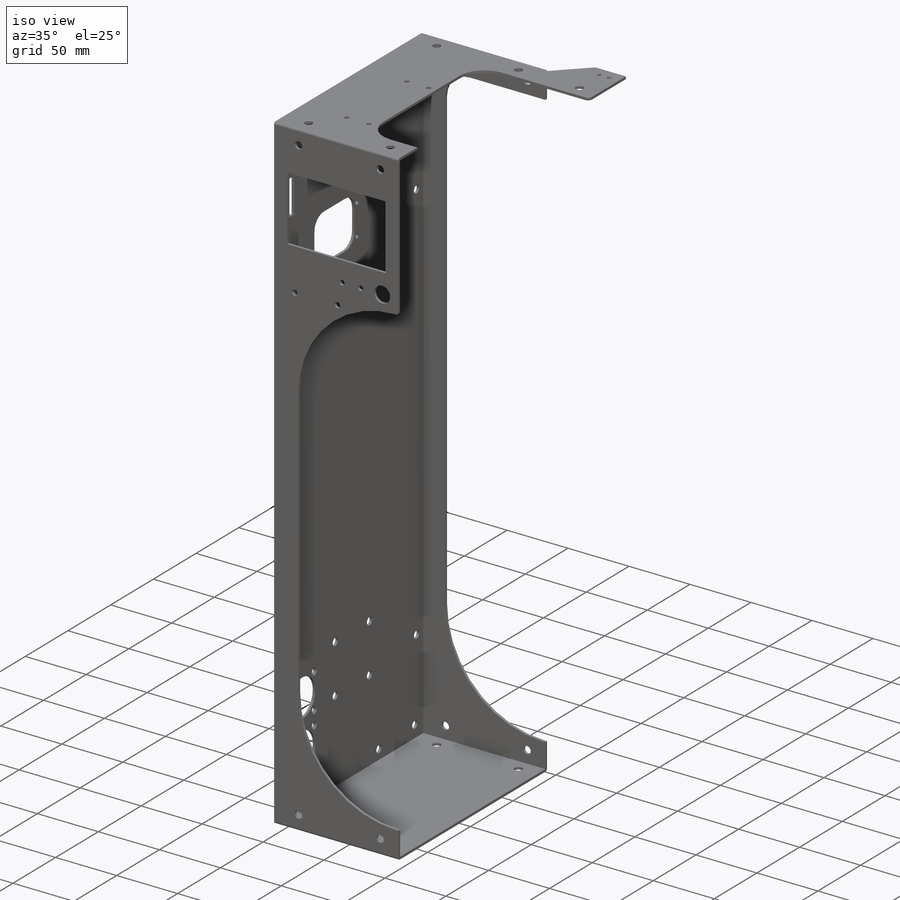
[diagram: iso view]
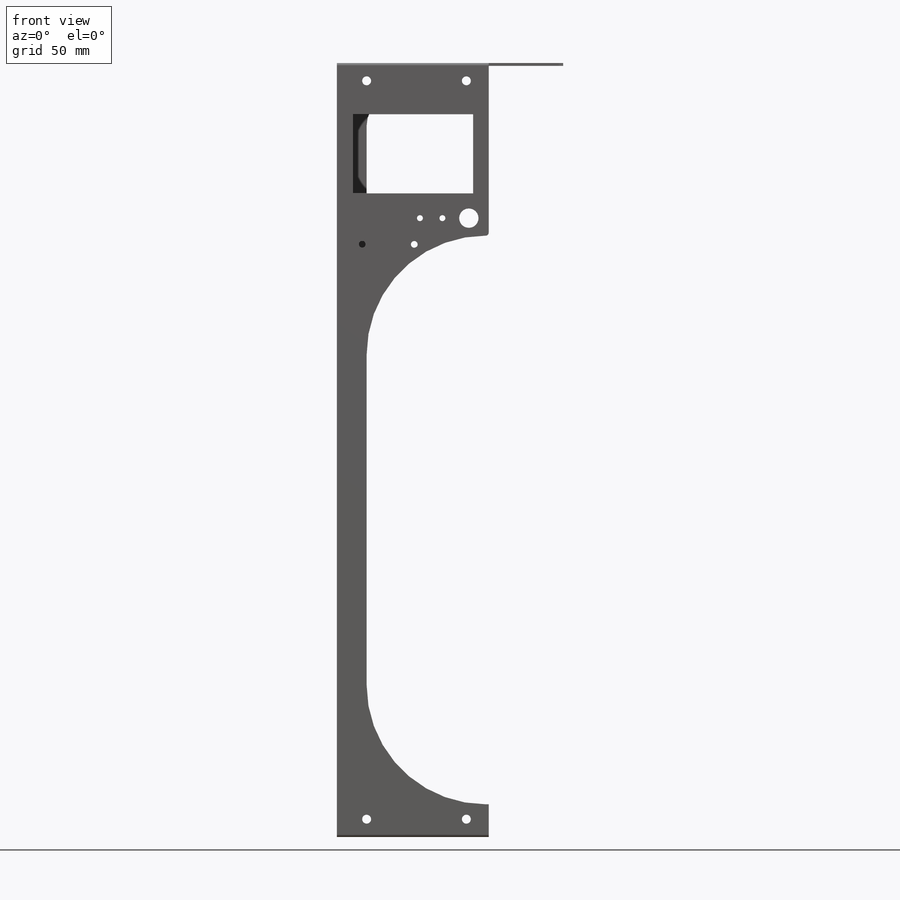
[diagram: front view]
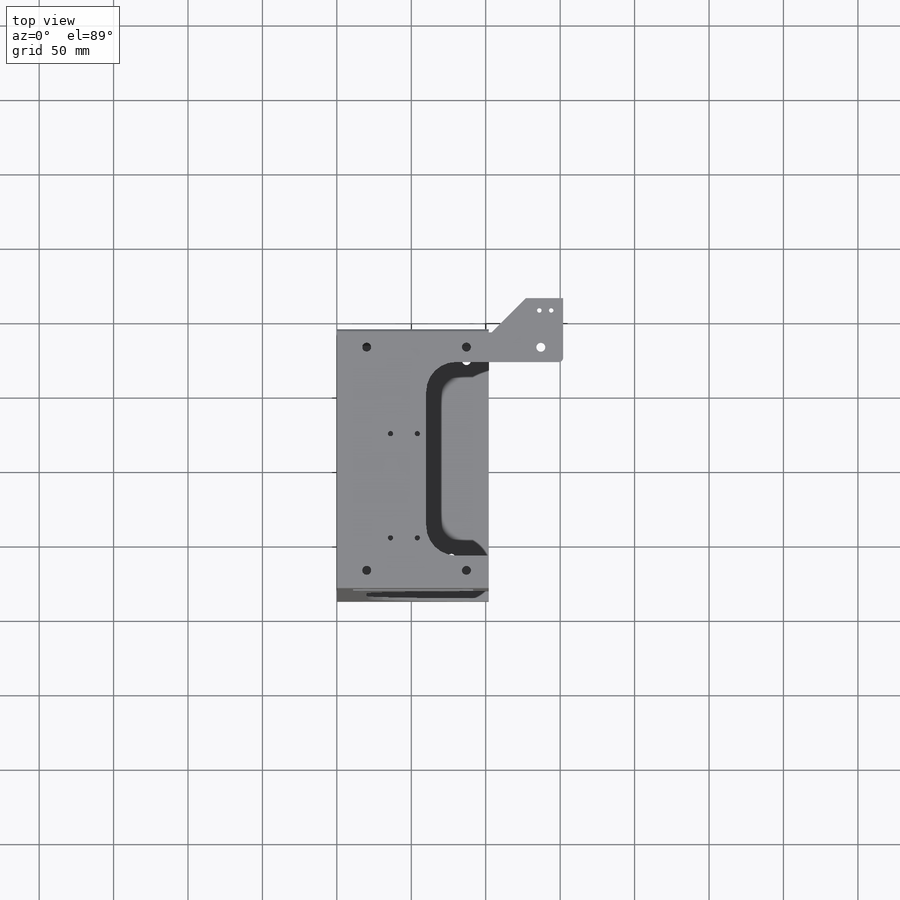
[diagram: top view]
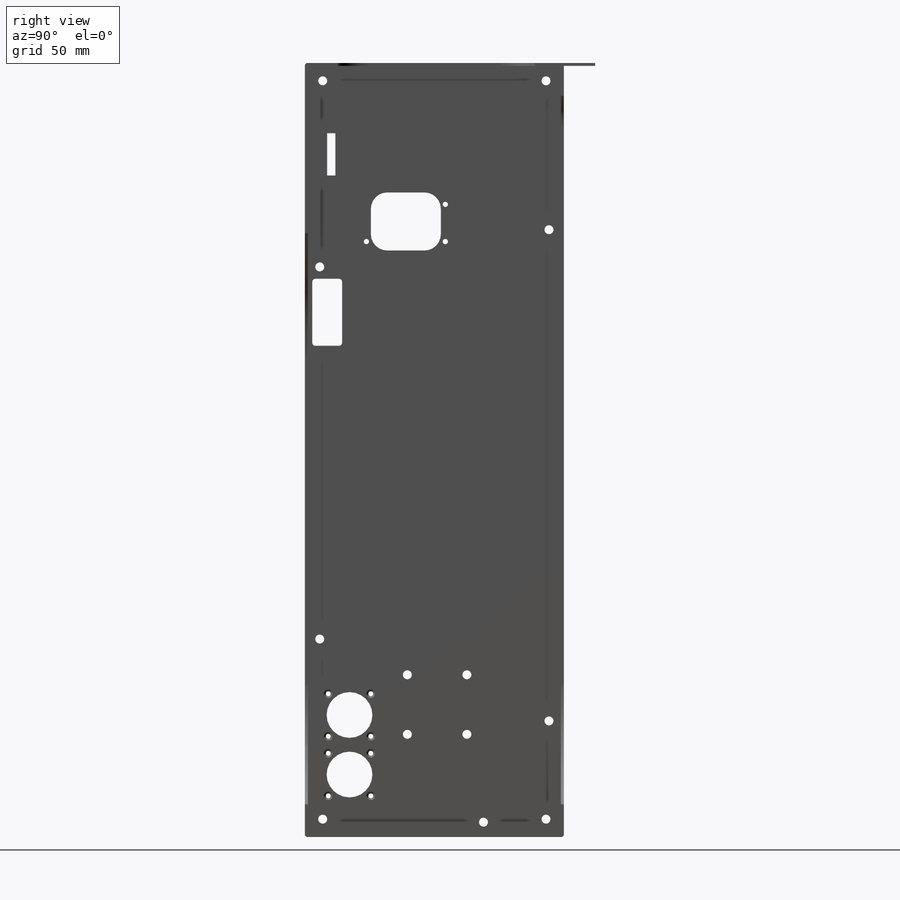
[diagram: right view]
SOLIDWORKS PART (.sldprt)
format: sldprt  version: not decoded by parser v0  size: 679,424 bytes
history: native  units: mm
features: sketch x14, cut_extrude x9, extrude x3, fillet x2, material x1, hole x1 (+11 scaffold rows collapsed)
feature tree (41):
  scaffold x11  (default folders/planes/origin — collapsed)
  material  "Material <not specified>"
  sketch  "Sketch1"  dims[D1=520.0mm D2=174.0mm]
  extrude  "Boss-Extrude1"  Depth=2mm
  sketch  "Sketch2"  dims[D1=2.0mm D2=0.0mm]
  extrude  "Boss-Extrude2"  Depth=100mm
  sketch  "Sketch3"  dims[D9=4.0mm D10=13.0mm D13=250.0mm D14=4.5mm D16=80.0mm D1=34.5mm D2=10.5mm D3=80.6mm D4=53.1mm D5=16.65mm D6=2.85mm D7=17.75mm D8=15.1mm D11=22.0mm D12=116.0mm D15=20.0mm]
  cut_extrude  "Cut-Extrude1"  Depth=10mm
  sketch  "Sketch4"  dims[D2=6.0mm D1=12.0mm D3=15.0mm D4=12.0mm D5=20.0mm D6=15.0mm]
  cut_extrude  "Cut-Extrude2"  [1 undecoded]
  sketch  "Sketch5"  dims[D3=6.0mm D1=12.0mm D2=12.0mm]
  cut_extrude  "Cut-Extrude3"  [1 undecoded]
  sketch  "Sketch7"  dims[c1.D4=150.0mm c1.D5=20.0mm c2.D4=80.0mm c2.D6=80.0mm c2.D1=22.0mm c2.D2=22.0mm c2.D3=20.0mm c3.D4=100.0mm]
  cut_extrude  "Cut-Extrude4"  Depth=10mm
  sketch  "Sketch8"  dims[D1=20.0mm D5=3.5mm D2=22.0mm D3=22.0mm D4=60.0mm]
  cut_extrude  "Cut-Extrude5"  Depth=10mm
  fillet  "Fillet1"  Radius=1.8mm
  sketch  "Sketch9"  dims[D5=6.0mm D1=12.0mm D2=12.0mm D3=12.0mm D4=12.0mm]
  cut_extrude  "Cut-Extrude6"  Depth=10mm
  sketch  "Sketch10"  dims[c1.D5=6.0mm c1.D6=30.73mm c1.D7=3.5mm c2.D6=11.0mm c2.D18=0.813mm c2.D19=30.73mm c2.D24=3.0mm c2.D12=2.0mm c2.D17=6.0mm c2.D1=1.0mm c2.D2=1.0mm c2.D3=1.0mm c2.D4=1.0mm c2.D8=28.58mm c2.D9=28.58mm c2.D10=72.0mm c2.D11=405.0mm c3.D8=2.0mm c3.D9=2.0mm c3.D10=2.0mm c3.D11=2.0mm c3.D12=42.4mm c3.D13=11.43mm c3.D14=47.0mm c3.D15=3.048mm c3.D16=15.0mm c3.D17=150.0mm c3.D20=28.58mm c3.D21=28.58mm c3.D22=28.58mm c3.D23=45.0mm c3.D25=30.0mm c3.D26=45.0mm c4.D23=42.0mm c4.D26=28.58mm c4.D27=40.0mm c4.D25=30.0mm c4.D13=20.0mm c4.D14=45.0mm c4.D15=15.0mm c4.D16=145.0mm c5.D15=25.0mm]
  cut_extrude  "Cut-Extrude7"  Depth=10mm
  sketch  "Sketch11"  dims[c1.D6=3.0mm c1.D11=3.0mm c1.D1=15.0mm c1.D2=50.0mm c1.D3=25.0mm c1.D4=2.0mm c1.D5=~7.927516mm c2.D5=45.0deg c2.D6=~36.257544mm c2.D7=8.25mm c2.D8=14.75mm c2.D9=8.0mm c2.D10=8.0mm]
  extrude  "Boss-Extrude3"  [1 undecoded]
  fillet  "Fillet2"  Radius=2mm
  sketch  "Sketch14"  dims[D3=4.5mm D1=30.0mm D2=25.0mm]
  cut_extrude  "Cut-Extrude8"  Depth=10mm
  sketch  "Sketch15"  dims[D1=20.0mm]
  cut_extrude  "Cut-Extrude9"  Depth=0.01mm
  hole  "CSK for #4 Flat Head Machine Screw (100)1"  Diameter=3.2639mm Depth=2mm
  sketch  "Sketch17"
  sketch  "Sketch16"  dims[hole-wizard template sketch: 55 standard entries collapsed; hole parameters kept: c17.Thru Hole Depth=2.0mm c17.Near C'Sink Dia.=5.715mm c17.D4=~3.666174mm c17.Near C'Sink Angle=100.0deg]
decode coverage: 25 of 29 modeling features carry decoded parameters
note: ~ marks probable driven/reference dimensions
note: 3 parameter values undecoded
summary: no parameter record found for 3 features
note: suppression state not decoded; provenance and decode notes live in map.json
